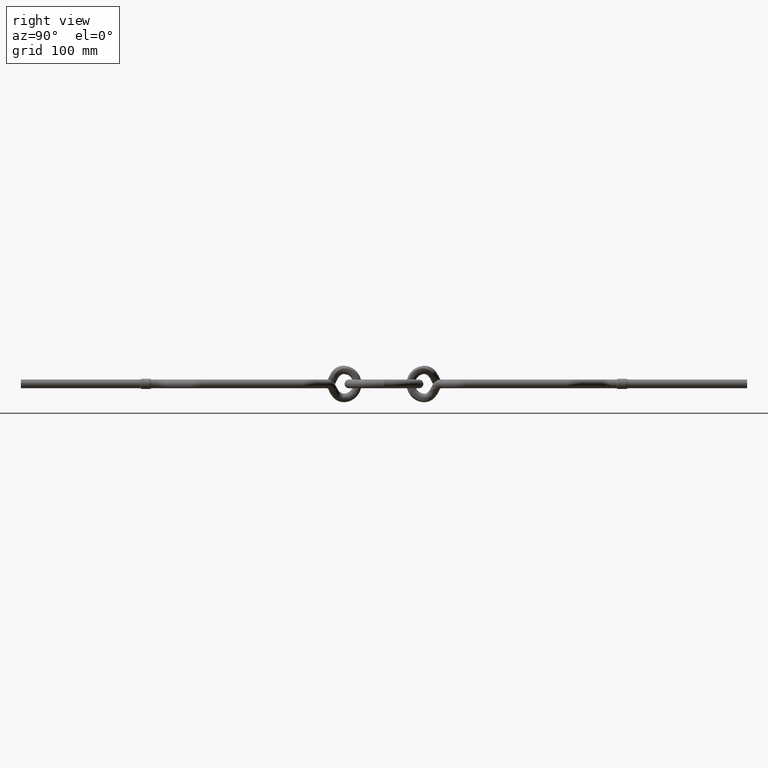
[diagram: clean part render]
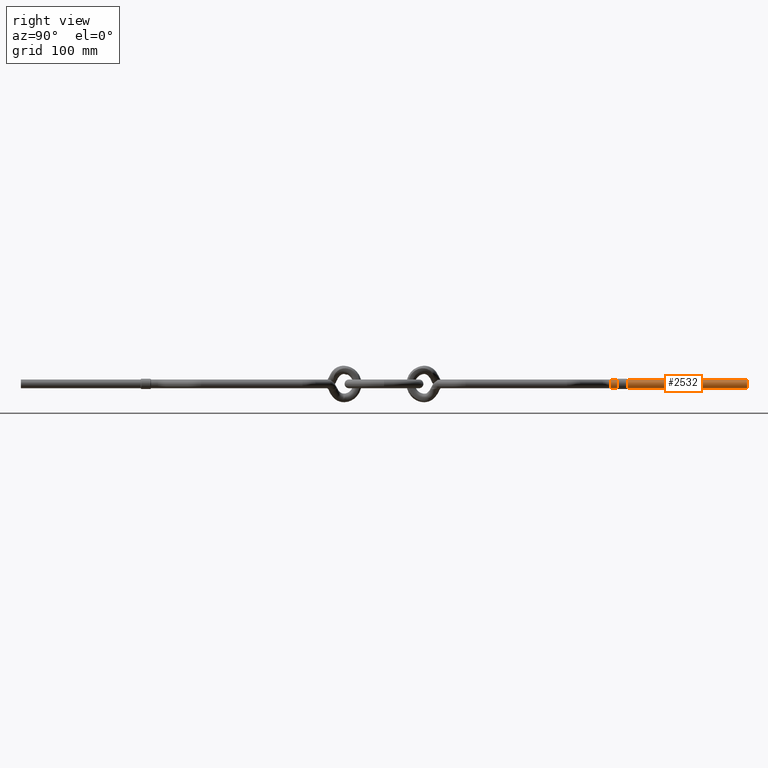
[diagram: same view with one face highlighted and labeled with its STEP entity id]
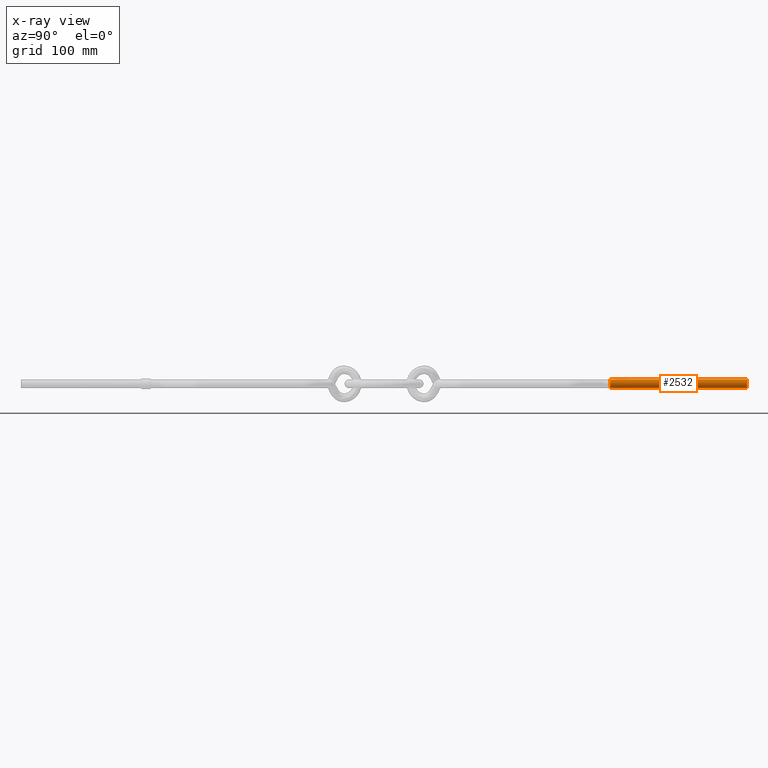
[diagram: x-ray of the same camera — body ghosted, the highlighted face saturated]
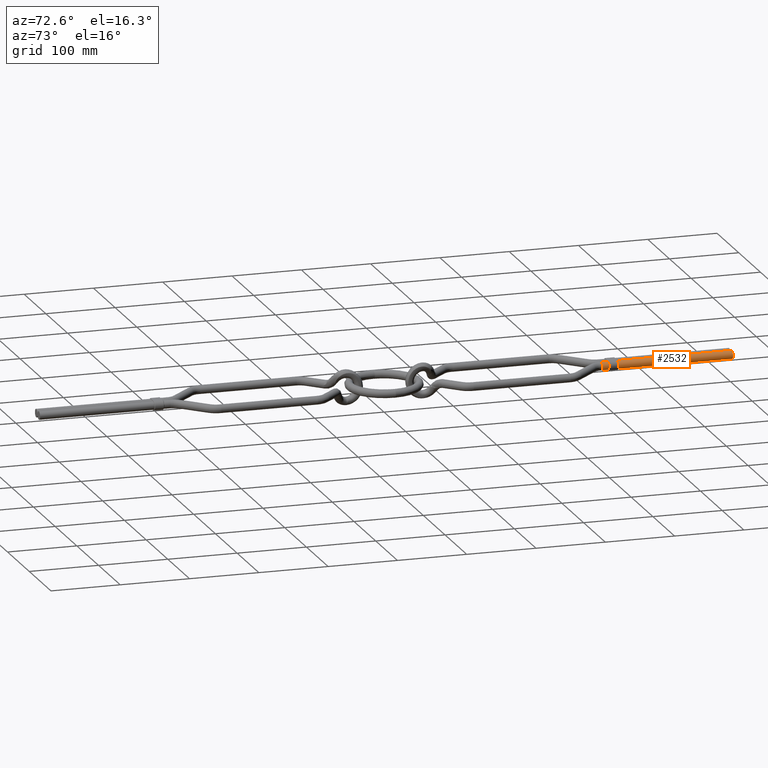
[diagram: same view with one face highlighted and labeled with its STEP entity id]
A machine part, right view. The second image highlights one B-rep face of the part: STEP entity #2532.
The next image is the same camera in x-ray: the body ghosted, the highlighted face saturated — about 0% of this face is hidden behind the body in this view.
A second angle (auxiliary view) of the same face is appended — the face is thin or edge-on in the first view.
In plain terms, the highlighted cylindrical surface (edge-blend (fillet) strip) has radius 6 mm, axis along (-0, 1, -0).
Its self-contained STEP definition (entity closure, byte-faithful):
#74 = DIRECTION ( 'NONE',  ( -0.0000000000000000000, 1.000000000000000000, -0.0000000000000000000 ) ) ;
#530 = CARTESIAN_POINT ( 'NONE',  ( 6.000000000000000000, 811.4857551999999700, -6.000000000000000900 ) ) ;
#1121 = AXIS2_PLACEMENT_3D ( 'NONE', #7942, #74, #9250 ) ;
#1354 = CYLINDRICAL_SURFACE ( 'NONE', #5296, 6.000000000000000900 ) ;
#2391 = CARTESIAN_POINT ( 'NONE',  ( 6.000000000000000000, 811.4857551999999700, -6.000000000000000900 ) ) ;
#2433 = EDGE_CURVE ( 'NONE', #3497, #4222, #13066, .T. ) ;
#2532 = ADVANCED_FACE ( 'NONE', ( #11848 ), #1354, .T. ) ;
#3109 = VECTOR ( 'NONE', #12159, 1000.000000000000000 ) ;
#3200 = ORIENTED_EDGE ( 'NONE', *, *, #2433, .T. ) ;
#3217 = EDGE_LOOP ( 'NONE', ( #10509, #3995, #15805, #3200, #11868 ) ) ;
#3497 = VERTEX_POINT ( 'NONE', #2391 ) ;
#3542 = EDGE_CURVE ( 'NONE', #5124, #9946, #10993, .T. ) ;
#3706 = CIRCLE ( 'NONE', #14345, 6.000000000000000900 ) ;
#3778 = CARTESIAN_POINT ( 'NONE',  ( 6.000000000000000000, 1000.000000000000000, -6.000000000000000900 ) ) ;
#3995 = ORIENTED_EDGE ( 'NONE', *, *, #3542, .T. ) ;
#4222 = VERTEX_POINT ( 'NONE', #3778 ) ;
#5092 = CARTESIAN_POINT ( 'NONE',  ( 5.999999999999999100, 1000.000000000000000, 6.000000000000000900 ) ) ;
#5124 = VERTEX_POINT ( 'NONE', #14335 ) ;
#5296 = AXIS2_PLACEMENT_3D ( 'NONE', #5554, #6876, #12092 ) ;
#5554 = CARTESIAN_POINT ( 'NONE',  ( 6.000000000000000000, 811.4857551999999700, 0.0000000000000000000 ) ) ;
#5575 = VERTEX_POINT ( 'NONE', #5092 ) ;
#5786 = CARTESIAN_POINT ( 'NONE',  ( 6.000000000000000000, 811.4857551999999700, 0.0000000000000000000 ) ) ;
#6876 = DIRECTION ( 'NONE',  ( -0.0000000000000000000, 1.000000000000000000, -0.0000000000000000000 ) ) ;
#6920 = VECTOR ( 'NONE', #8408, 1000.000000000000000 ) ;
#7091 = CARTESIAN_POINT ( 'NONE',  ( 6.000000000000000000, 1000.000000000000000, 0.0000000000000000000 ) ) ;
#7103 = DIRECTION ( 'NONE',  ( 0.0000000000000000000, 0.0000000000000000000, 1.000000000000000000 ) ) ;
#7942 = CARTESIAN_POINT ( 'NONE',  ( 6.000000000000000000, 811.4857551999999700, 0.0000000000000000000 ) ) ;
#8279 = CARTESIAN_POINT ( 'NONE',  ( 12.00000000000000200, 811.4857551999999700, 7.347880794884122700E-016 ) ) ;
#8408 = DIRECTION ( 'NONE',  ( -0.0000000000000000000, 1.000000000000000000, -0.0000000000000000000 ) ) ;
#8411 = DIRECTION ( 'NONE',  ( 0.0000000000000000000, 0.0000000000000000000, 1.000000000000000000 ) ) ;
#9250 = DIRECTION ( 'NONE',  ( 0.0000000000000000000, 0.0000000000000000000, 1.000000000000000000 ) ) ;
#9946 = VERTEX_POINT ( 'NONE', #8279 ) ;
#10509 = ORIENTED_EDGE ( 'NONE', *, *, #13034, .F. ) ;
#10800 = EDGE_CURVE ( 'NONE', #5575, #4222, #3706, .T. ) ;
#10993 = CIRCLE ( 'NONE', #1121, 6.000000000000000900 ) ;
#11848 = FACE_OUTER_BOUND ( 'NONE', #3217, .T. ) ;
#11868 = ORIENTED_EDGE ( 'NONE', *, *, #10800, .F. ) ;
#12092 = DIRECTION ( 'NONE',  ( 0.0000000000000000000, 0.0000000000000000000, -1.000000000000000000 ) ) ;
#12159 = DIRECTION ( 'NONE',  ( -0.0000000000000000000, 1.000000000000000000, -0.0000000000000000000 ) ) ;
#13034 = EDGE_CURVE ( 'NONE', #5124, #5575, #13596, .T. ) ;
#13066 = LINE ( 'NONE', #530, #6920 ) ;
#13596 = LINE ( 'NONE', #16140, #3109 ) ;
#14335 = CARTESIAN_POINT ( 'NONE',  ( 5.999999999999999100, 811.4857551999999700, 6.000000000000000900 ) ) ;
#14345 = AXIS2_PLACEMENT_3D ( 'NONE', #7091, #16225, #8411 ) ;
#14953 = DIRECTION ( 'NONE',  ( -0.0000000000000000000, 1.000000000000000000, -0.0000000000000000000 ) ) ;
#15462 = CIRCLE ( 'NONE', #16680, 6.000000000000000900 ) ;
#15805 = ORIENTED_EDGE ( 'NONE', *, *, #16054, .T. ) ;
#16054 = EDGE_CURVE ( 'NONE', #9946, #3497, #15462, .T. ) ;
#16140 = CARTESIAN_POINT ( 'NONE',  ( 5.999999999999999100, 811.4857551999999700, 6.000000000000000900 ) ) ;
#16225 = DIRECTION ( 'NONE',  ( -0.0000000000000000000, 1.000000000000000000, -0.0000000000000000000 ) ) ;
#16680 = AXIS2_PLACEMENT_3D ( 'NONE', #5786, #14953, #7103 ) ;